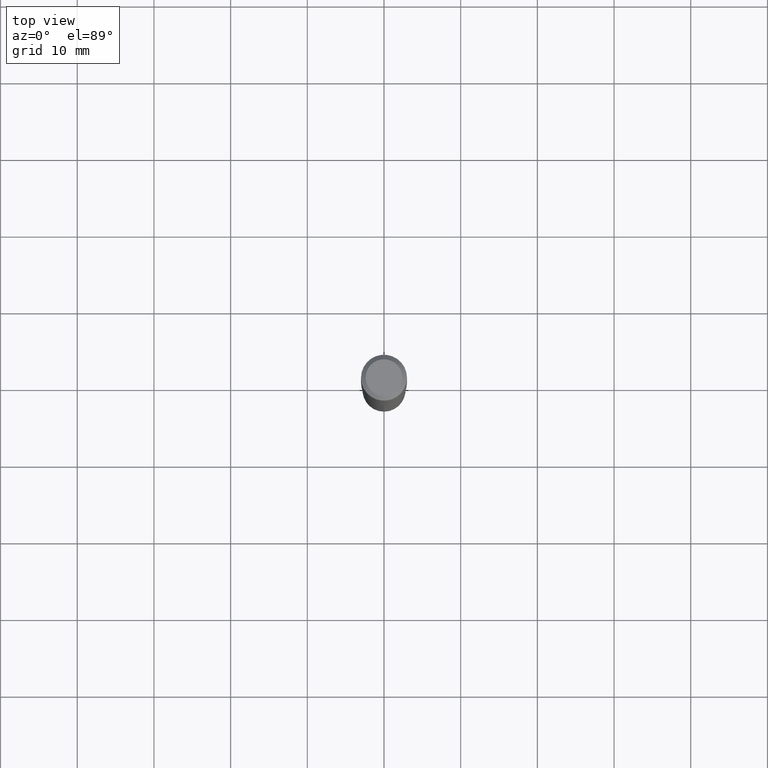
[diagram: clean part render]
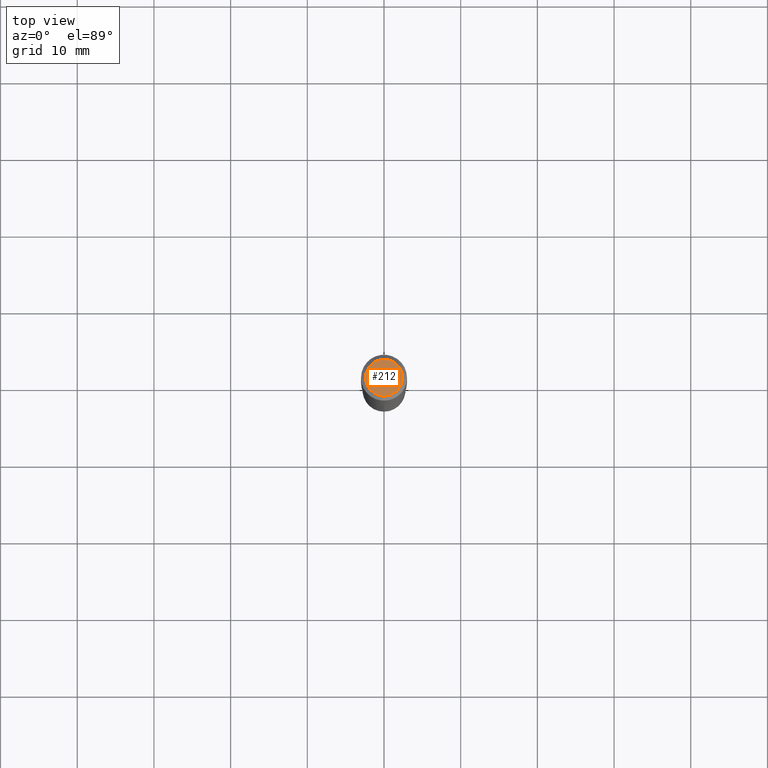
[diagram: same view with one face highlighted and labeled with its STEP entity id]
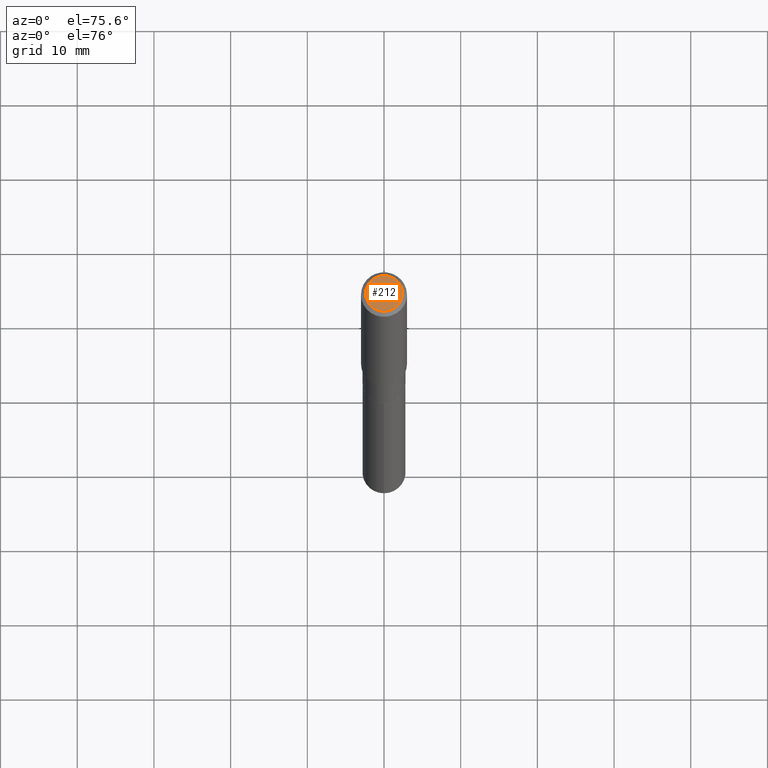
[diagram: same view with one face highlighted and labeled with its STEP entity id]
A machine part, top view. The second image highlights one B-rep face of the part: STEP entity #212.
A second angle (auxiliary view) of the same face is appended — the face is thin or edge-on in the first view.
In plain terms, the highlighted planar face has unit normal (0, -0, -1).
Its self-contained STEP definition (entity closure, byte-faithful):
#2 = FACE_OUTER_BOUND ( 'NONE', #66, .T. ) ;
#32 = DIRECTION ( 'NONE',  ( -1.000000000000000000, 6.982962677686265922E-15, -4.876176775795935793E-29 ) ) ;
#37 = CARTESIAN_POINT ( 'NONE',  ( -0.09447999999999998066, 7.009847083995354710E-16, -1.928573779297727792E-17 ) ) ;
#42 = CARTESIAN_POINT ( 'NONE',  ( 4.716267017698007905E-46, -6.733579360998555036E-32, -1.928573779297252010E-17 ) ) ;
#66 = EDGE_LOOP ( 'NONE', ( #199, #244 ) ) ;
#68 = CARTESIAN_POINT ( 'NONE',  ( 2.358133508849003952E-46, -3.366789680499277518E-32, -9.642868896486260050E-18 ) ) ;
#85 = DIRECTION ( 'NONE',  ( -2.445468806185136597E-29, 3.491481338843145583E-15, 1.000000000000000000 ) ) ;
#104 = CIRCLE ( 'NONE', #422, 0.09447999999999998066 ) ;
#113 = EDGE_CURVE ( 'NONE', #254, #207, #128, .T. ) ;
#128 = CIRCLE ( 'NONE', #413, 0.09447999999999998066 ) ;
#143 = DIRECTION ( 'NONE',  ( 2.438088387897960049E-29, -3.491481338843145188E-15, -1.000000000000000000 ) ) ;
#144 = DIRECTION ( 'NONE',  ( 1.000000000000000000, -6.982962677686267499E-15, 4.875432709231658792E-29 ) ) ;
#180 = PLANE ( 'NONE',  #322 ) ;
#188 = CARTESIAN_POINT ( 'NONE',  ( 4.716267017698007905E-46, -6.733579360998555036E-32, -1.928573779297252010E-17 ) ) ;
#199 = ORIENTED_EDGE ( 'NONE', *, *, #431, .T. ) ;
#207 = VERTEX_POINT ( 'NONE', #37 ) ;
#212 = ADVANCED_FACE ( 'NONE', ( #2 ), #180, .F. ) ;
#244 = ORIENTED_EDGE ( 'NONE', *, *, #113, .T. ) ;
#254 = VERTEX_POINT ( 'NONE', #409 ) ;
#322 = AXIS2_PLACEMENT_3D ( 'NONE', #68, #143, #32 ) ;
#345 = DIRECTION ( 'NONE',  ( 1.000000000000000000, -6.982962677686267499E-15, 4.875432709231658792E-29 ) ) ;
#409 = CARTESIAN_POINT ( 'NONE',  ( 0.09447999999999998066, -7.704367267948738690E-16, -1.928573779296752193E-17 ) ) ;
#413 = AXIS2_PLACEMENT_3D ( 'NONE', #42, #454, #144 ) ;
#422 = AXIS2_PLACEMENT_3D ( 'NONE', #188, #85, #345 ) ;
#431 = EDGE_CURVE ( 'NONE', #207, #254, #104, .T. ) ;
#454 = DIRECTION ( 'NONE',  ( -2.445468806185136597E-29, 3.491481338843145583E-15, 1.000000000000000000 ) ) ;